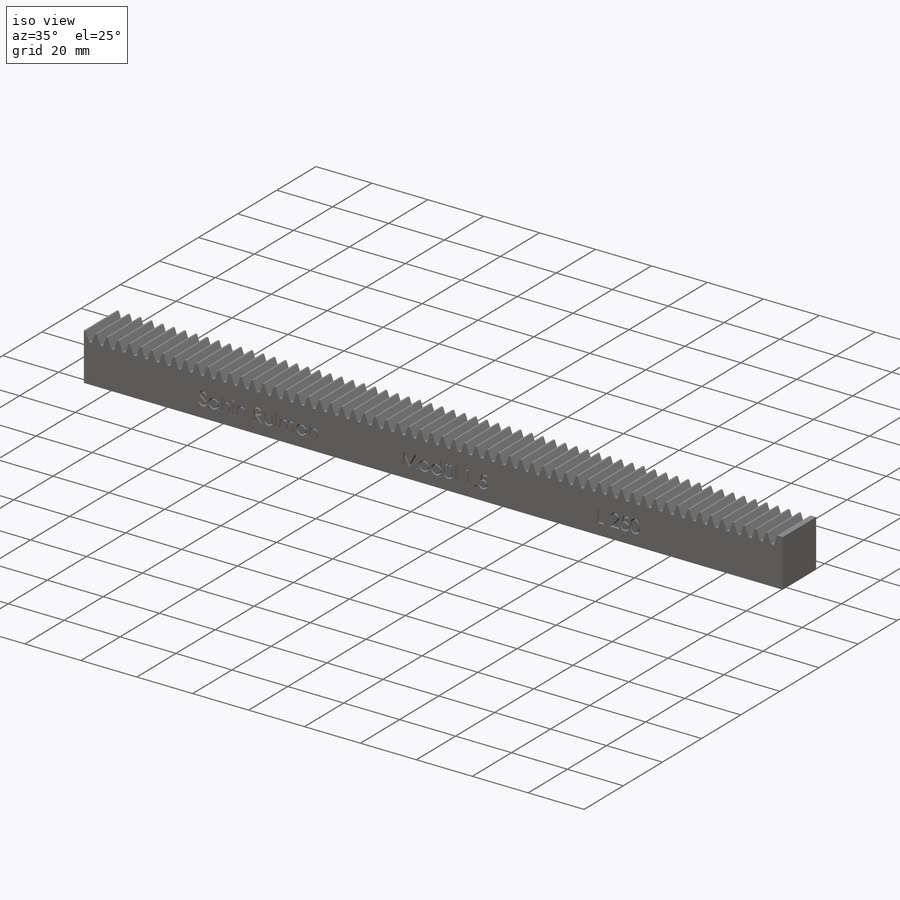
[diagram: iso view]
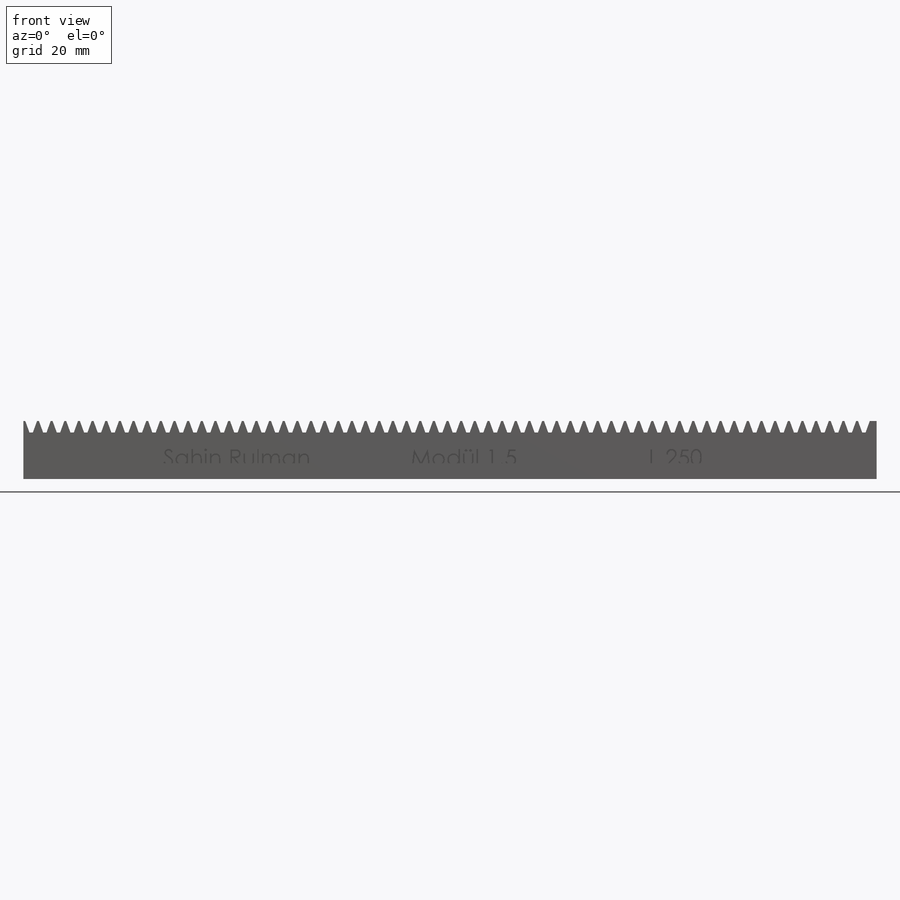
[diagram: front view]
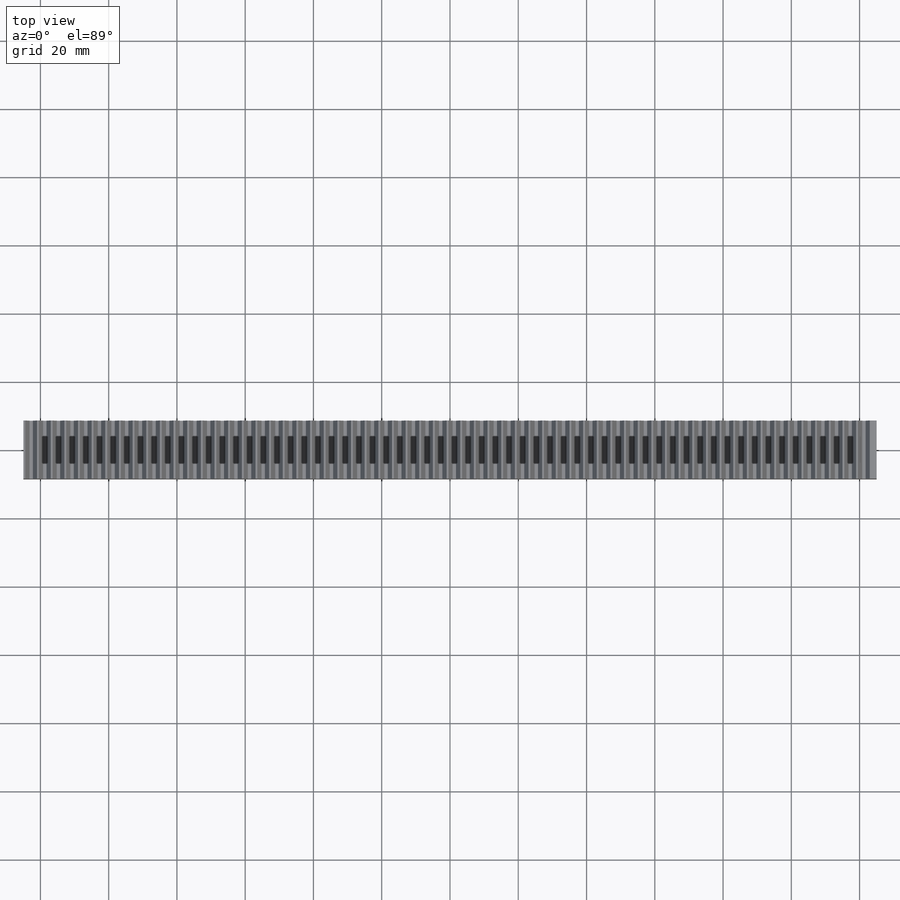
[diagram: top view]
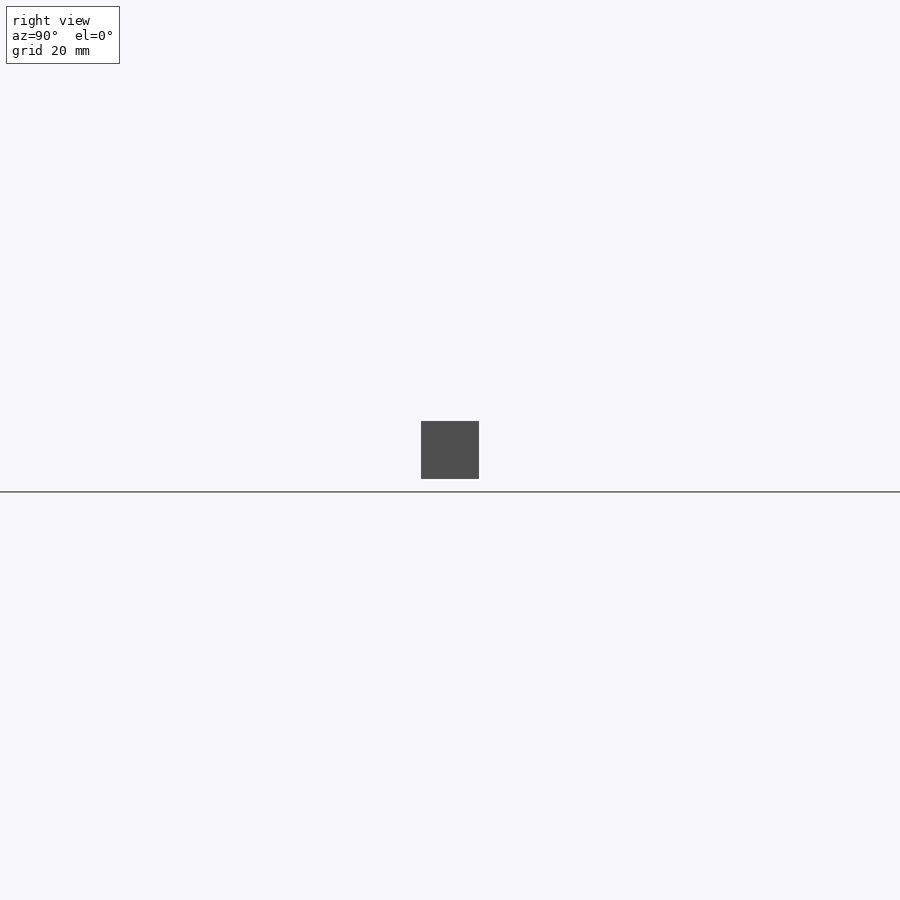
[diagram: right view]
SOLIDWORKS PART (.sldprt)
format: sldprt  version: not decoded by parser v0  size: 687,616 bytes
history: native  units: mm
features: sketch x3, cut_extrude x2, material x1, extrude x1, pattern_linear x1 (+11 scaffold rows collapsed)
feature tree (19):
  scaffold x11  (default folders/planes/origin — collapsed)
  material  "Material <not specified>"
  sketch  "Sketch1"  dims[D1=17.0mm D2=17.0mm]
  extrude  "Boss-Extrude1"  Depth=250mm
  sketch  "Sketch2"  dims[c1.D1=0.4955mm c1.D2=0.991mm c1.D3=2.0mm c1.D4=4.0mm c1.D5=~7.313913mm c2.D5=20.0deg c2.D6=~7.313913mm c3.D6=20.0deg c3.D1=3.375mm c3.D4=~8.105062mm c4.D4=20.0deg c4.D5=~8.105062mm c5.D5=20.0deg]
  cut_extrude  "Cut-Extrude1"  [1 undecoded]
  pattern_linear  "LPattern1"  Count1=124 Count2=1 Spacing1=4mm Spacing2=10mm
  sketch  "Sketch3"  dims[D1=2.0mm]
  cut_extrude  "Cut-Extrude2"  Depth=2mm
decode coverage: 6 of 7 modeling features carry decoded parameters
note: ~ marks probable driven/reference dimensions
note: 1 parameter value undecoded
note: suppression state not decoded; provenance and decode notes live in map.json
